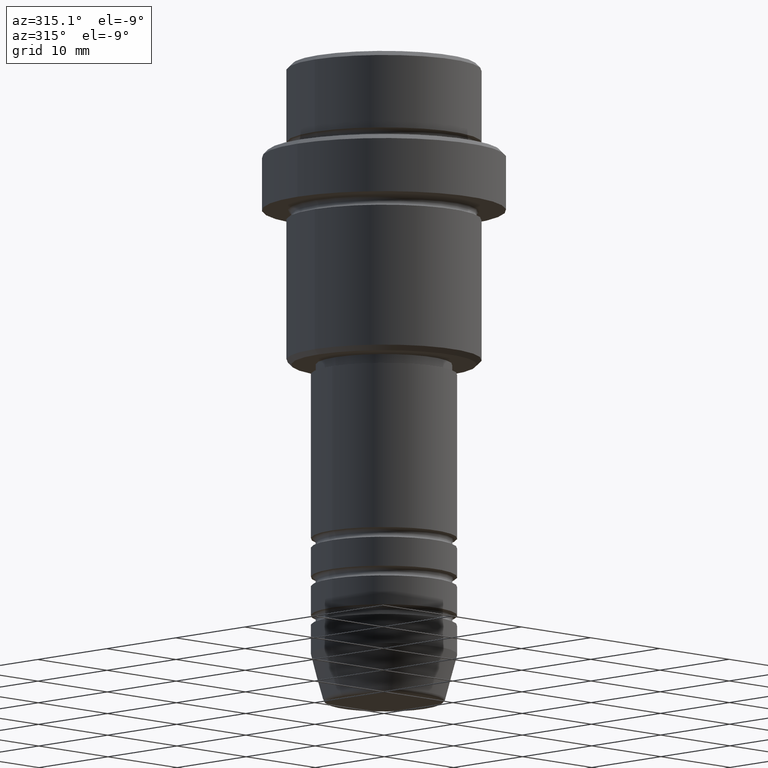
[diagram: clean part render]
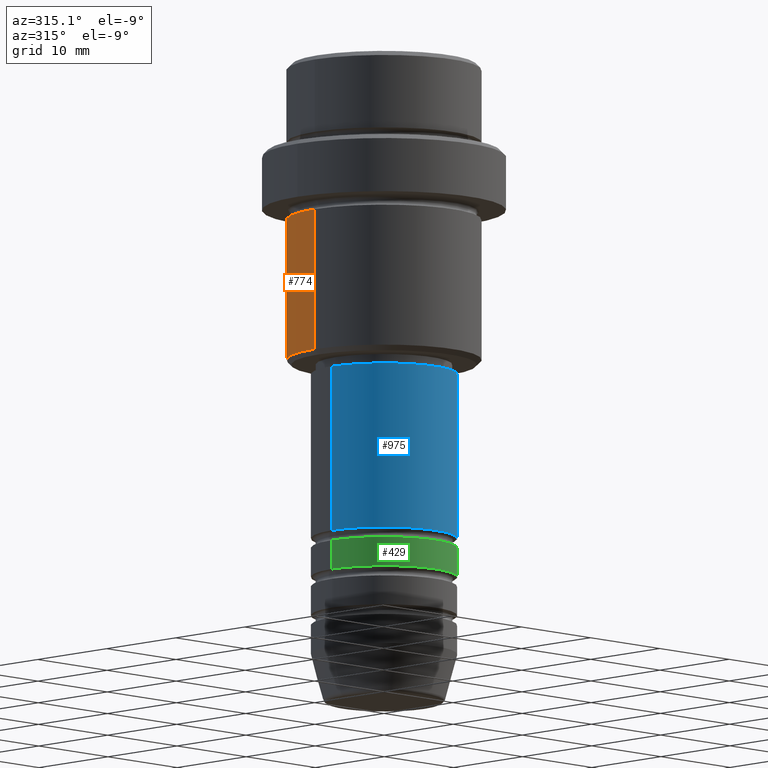
[diagram: same view with three faces highlighted in distinct colors, each labeled with its STEP entity id]
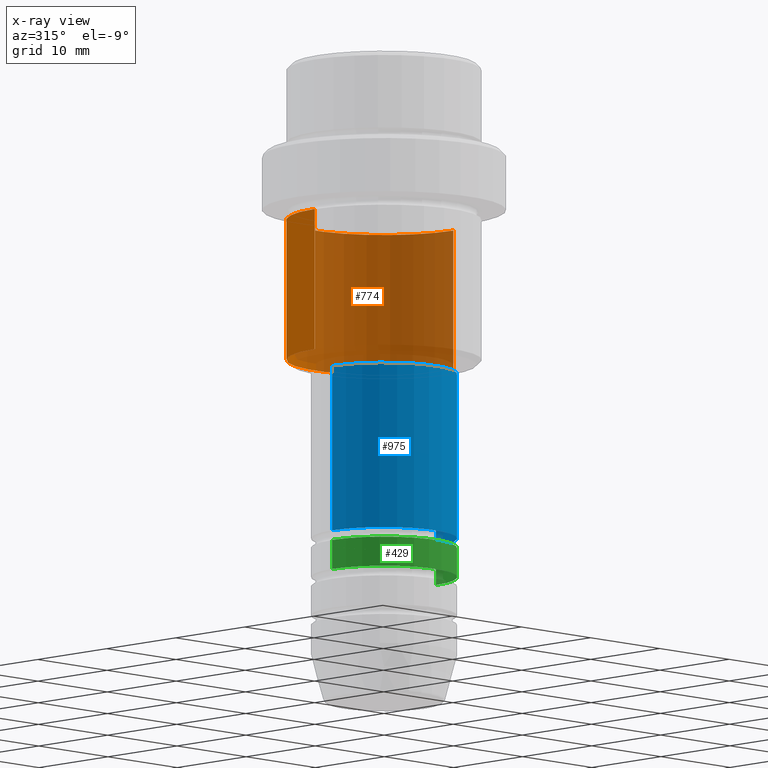
[diagram: x-ray of the same camera — body ghosted, the three highlighted faces saturated]
A machine part, auxiliary view with three faces highlighted in distinct colors.
The next image is the same camera in x-ray (body ghosted, the three faces saturated) — at least one of them is partly hidden behind the body in this view.
Their STEP definitions:

[orange] entity #774 — the highlighted cylindrical surface (partial cylindrical patch) has radius 10 mm, axis along (-0, -0, 1).
#61 = FACE_OUTER_BOUND ( 'NONE', #215, .T. ) ;
#112 = VECTOR ( 'NONE', #1252, 1000.000000000000000 ) ;
#187 = DIRECTION ( 'NONE',  ( 1.000000000000000000, 0.000000000000000000, 0.000000000000000000 ) ) ;
#215 = EDGE_LOOP ( 'NONE', ( #725, #237, #1028, #566 ) ) ;
#237 = ORIENTED_EDGE ( 'NONE', *, *, #630, .T. ) ;
#262 = DIRECTION ( 'NONE',  ( -0.000000000000000000, -0.000000000000000000, 1.000000000000000000 ) ) ;
#275 = EDGE_CURVE ( 'NONE', #1038, #997, #1394, .T. ) ;
#304 = DIRECTION ( 'NONE',  ( -1.000000000000000000, 0.000000000000000000, 0.000000000000000000 ) ) ;
#315 = CARTESIAN_POINT ( 'NONE',  ( 10.00000000000000000, 0.000000000000000000, 0.000000000000000000 ) ) ;
#471 = CARTESIAN_POINT ( 'NONE',  ( 10.00000000000000000, 0.000000000000000000, -30.49999999999998579 ) ) ;
#485 = CARTESIAN_POINT ( 'NONE',  ( 0.000000000000000000, 0.000000000000000000, 0.000000000000000000 ) ) ;
#486 = VERTEX_POINT ( 'NONE', #970 ) ;
#490 = DIRECTION ( 'NONE',  ( -0.000000000000000000, -0.000000000000000000, 1.000000000000000000 ) ) ;
#566 = ORIENTED_EDGE ( 'NONE', *, *, #275, .F. ) ;
#583 = CARTESIAN_POINT ( 'NONE',  ( -10.00000000000000000, 1.224646799147353256E-15, 0.000000000000000000 ) ) ;
#594 = AXIS2_PLACEMENT_3D ( 'NONE', #839, #262, #304 ) ;
#624 = CARTESIAN_POINT ( 'NONE',  ( 10.00000000000000000, 0.000000000000000000, -16.00000000000000000 ) ) ;
#630 = EDGE_CURVE ( 'NONE', #782, #486, #1026, .T. ) ;
#684 = DIRECTION ( 'NONE',  ( -0.000000000000000000, -0.000000000000000000, 1.000000000000000000 ) ) ;
#725 = ORIENTED_EDGE ( 'NONE', *, *, #1295, .T. ) ;
#741 = DIRECTION ( 'NONE',  ( -0.000000000000000000, -0.000000000000000000, 1.000000000000000000 ) ) ;
#774 = ADVANCED_FACE ( 'NONE', ( #61 ), #1383, .T. ) ;
#782 = VERTEX_POINT ( 'NONE', #824 ) ;
#814 = AXIS2_PLACEMENT_3D ( 'NONE', #1150, #490, #1165 ) ;
#824 = CARTESIAN_POINT ( 'NONE',  ( -10.00000000000000000, 1.224646799147353256E-15, -30.49999999999998579 ) ) ;
#831 = CIRCLE ( 'NONE', #594, 10.00000000000000000 ) ;
#839 = CARTESIAN_POINT ( 'NONE',  ( 0.000000000000000000, 0.000000000000000000, -30.49999999999998579 ) ) ;
#970 = CARTESIAN_POINT ( 'NONE',  ( -10.00000000000000000, 1.224646799147353256E-15, -16.00000000000000000 ) ) ;
#997 = VERTEX_POINT ( 'NONE', #624 ) ;
#1026 = LINE ( 'NONE', #583, #112 ) ;
#1028 = ORIENTED_EDGE ( 'NONE', *, *, #1167, .F. ) ;
#1038 = VERTEX_POINT ( 'NONE', #471 ) ;
#1150 = CARTESIAN_POINT ( 'NONE',  ( 0.000000000000000000, 0.000000000000000000, -16.00000000000000000 ) ) ;
#1158 = CIRCLE ( 'NONE', #814, 10.00000000000000000 ) ;
#1165 = DIRECTION ( 'NONE',  ( 1.000000000000000000, 0.000000000000000000, 0.000000000000000000 ) ) ;
#1167 = EDGE_CURVE ( 'NONE', #997, #486, #1158, .T. ) ;
#1218 = VECTOR ( 'NONE', #684, 1000.000000000000000 ) ;
#1252 = DIRECTION ( 'NONE',  ( -0.000000000000000000, -0.000000000000000000, 1.000000000000000000 ) ) ;
#1295 = EDGE_CURVE ( 'NONE', #1038, #782, #831, .T. ) ;
#1304 = AXIS2_PLACEMENT_3D ( 'NONE', #485, #741, #187 ) ;
#1383 = CYLINDRICAL_SURFACE ( 'NONE', #1304, 10.00000000000000000 ) ;
#1394 = LINE ( 'NONE', #315, #1218 ) ;

[blue] entity #975 — the highlighted cylindrical surface (partial cylindrical patch) has radius 7.5 mm, axis along (-0, -0, 1).
#15 = EDGE_LOOP ( 'NONE', ( #678, #1384, #985, #767 ) ) ;
#52 = AXIS2_PLACEMENT_3D ( 'NONE', #1060, #1371, #377 ) ;
#65 = DIRECTION ( 'NONE',  ( -0.000000000000000000, -0.000000000000000000, 1.000000000000000000 ) ) ;
#86 = DIRECTION ( 'NONE',  ( -0.000000000000000000, -0.000000000000000000, 1.000000000000000000 ) ) ;
#126 = CARTESIAN_POINT ( 'NONE',  ( -7.500000000000000000, 9.184850993605147944E-16, -32.00000000000000000 ) ) ;
#191 = VERTEX_POINT ( 'NONE', #676 ) ;
#194 = DIRECTION ( 'NONE',  ( 1.000000000000000000, 0.000000000000000000, 0.000000000000000000 ) ) ;
#200 = CARTESIAN_POINT ( 'NONE',  ( 0.000000000000000000, 0.000000000000000000, 0.000000000000000000 ) ) ;
#273 = AXIS2_PLACEMENT_3D ( 'NONE', #879, #864, #1296 ) ;
#377 = DIRECTION ( 'NONE',  ( 1.000000000000000000, 0.000000000000000000, 0.000000000000000000 ) ) ;
#394 = LINE ( 'NONE', #840, #1138 ) ;
#456 = VERTEX_POINT ( 'NONE', #126 ) ;
#474 = VECTOR ( 'NONE', #1171, 1000.000000000000000 ) ;
#561 = VERTEX_POINT ( 'NONE', #991 ) ;
#577 = CARTESIAN_POINT ( 'NONE',  ( 7.500000000000000000, 0.000000000000000000, -32.00000000000000000 ) ) ;
#655 = FACE_OUTER_BOUND ( 'NONE', #15, .T. ) ;
#676 = CARTESIAN_POINT ( 'NONE',  ( 7.500000000000000000, 0.000000000000000000, -48.99999999999989342 ) ) ;
#678 = ORIENTED_EDGE ( 'NONE', *, *, #766, .F. ) ;
#737 = CIRCLE ( 'NONE', #52, 7.500000000000000000 ) ;
#766 = EDGE_CURVE ( 'NONE', #561, #456, #394, .T. ) ;
#767 = ORIENTED_EDGE ( 'NONE', *, *, #1259, .F. ) ;
#835 = EDGE_CURVE ( 'NONE', #191, #1120, #1179, .T. ) ;
#840 = CARTESIAN_POINT ( 'NONE',  ( -7.500000000000000000, 9.184850993605147944E-16, 0.000000000000000000 ) ) ;
#864 = DIRECTION ( 'NONE',  ( -0.000000000000000000, -0.000000000000000000, 1.000000000000000000 ) ) ;
#879 = CARTESIAN_POINT ( 'NONE',  ( 0.000000000000000000, 0.000000000000000000, -48.99999999999989342 ) ) ;
#975 = ADVANCED_FACE ( 'NONE', ( #655 ), #1188, .T. ) ;
#985 = ORIENTED_EDGE ( 'NONE', *, *, #835, .T. ) ;
#991 = CARTESIAN_POINT ( 'NONE',  ( -7.500000000000000000, 9.184850993605147944E-16, -48.99999999999989342 ) ) ;
#1060 = CARTESIAN_POINT ( 'NONE',  ( 0.000000000000000000, 0.000000000000000000, -32.00000000000000000 ) ) ;
#1062 = AXIS2_PLACEMENT_3D ( 'NONE', #200, #86, #194 ) ;
#1069 = CARTESIAN_POINT ( 'NONE',  ( 7.500000000000000000, 0.000000000000000000, 0.000000000000000000 ) ) ;
#1120 = VERTEX_POINT ( 'NONE', #577 ) ;
#1138 = VECTOR ( 'NONE', #65, 1000.000000000000000 ) ;
#1171 = DIRECTION ( 'NONE',  ( -0.000000000000000000, -0.000000000000000000, 1.000000000000000000 ) ) ;
#1179 = LINE ( 'NONE', #1069, #474 ) ;
#1188 = CYLINDRICAL_SURFACE ( 'NONE', #1062, 7.500000000000000000 ) ;
#1202 = CIRCLE ( 'NONE', #273, 7.500000000000000000 ) ;
#1259 = EDGE_CURVE ( 'NONE', #456, #1120, #737, .T. ) ;
#1296 = DIRECTION ( 'NONE',  ( 1.000000000000000000, 0.000000000000000000, 0.000000000000000000 ) ) ;
#1371 = DIRECTION ( 'NONE',  ( -0.000000000000000000, -0.000000000000000000, 1.000000000000000000 ) ) ;
#1384 = ORIENTED_EDGE ( 'NONE', *, *, #1408, .T. ) ;
#1408 = EDGE_CURVE ( 'NONE', #561, #191, #1202, .T. ) ;

[green] entity #429 — the highlighted cylindrical surface (partial cylindrical patch) has radius 7.5 mm, axis along (-0, -0, 1).
#73 = LINE ( 'NONE', #639, #936 ) ;
#95 = VECTOR ( 'NONE', #103, 1000.000000000000000 ) ;
#103 = DIRECTION ( 'NONE',  ( -0.000000000000000000, -0.000000000000000000, 1.000000000000000000 ) ) ;
#118 = DIRECTION ( 'NONE',  ( -0.000000000000000000, -0.000000000000000000, 1.000000000000000000 ) ) ;
#125 = ORIENTED_EDGE ( 'NONE', *, *, #1359, .T. ) ;
#170 = CARTESIAN_POINT ( 'NONE',  ( -7.500000000000000000, 9.184850993605147944E-16, -52.99999999999989342 ) ) ;
#174 = EDGE_CURVE ( 'NONE', #332, #188, #73, .T. ) ;
#188 = VERTEX_POINT ( 'NONE', #909 ) ;
#226 = ORIENTED_EDGE ( 'NONE', *, *, #999, .T. ) ;
#227 = CIRCLE ( 'NONE', #708, 7.500000000000000000 ) ;
#310 = DIRECTION ( 'NONE',  ( -0.000000000000000000, -0.000000000000000000, 1.000000000000000000 ) ) ;
#320 = CARTESIAN_POINT ( 'NONE',  ( 7.500000000000000000, 0.000000000000000000, -49.99999999999989342 ) ) ;
#332 = VERTEX_POINT ( 'NONE', #170 ) ;
#365 = CIRCLE ( 'NONE', #570, 7.500000000000000000 ) ;
#400 = AXIS2_PLACEMENT_3D ( 'NONE', #1288, #742, #1369 ) ;
#402 = FACE_OUTER_BOUND ( 'NONE', #619, .T. ) ;
#415 = CARTESIAN_POINT ( 'NONE',  ( 0.000000000000000000, 0.000000000000000000, -52.99999999999989342 ) ) ;
#419 = LINE ( 'NONE', #626, #95 ) ;
#429 = ADVANCED_FACE ( 'NONE', ( #402 ), #854, .T. ) ;
#477 = VERTEX_POINT ( 'NONE', #320 ) ;
#497 = EDGE_CURVE ( 'NONE', #188, #477, #227, .T. ) ;
#499 = CARTESIAN_POINT ( 'NONE',  ( 7.500000000000000000, 0.000000000000000000, -52.99999999999989342 ) ) ;
#570 = AXIS2_PLACEMENT_3D ( 'NONE', #415, #310, #753 ) ;
#619 = EDGE_LOOP ( 'NONE', ( #1153, #226, #125, #929 ) ) ;
#626 = CARTESIAN_POINT ( 'NONE',  ( 7.500000000000000000, 0.000000000000000000, 0.000000000000000000 ) ) ;
#633 = DIRECTION ( 'NONE',  ( 1.000000000000000000, 0.000000000000000000, 0.000000000000000000 ) ) ;
#639 = CARTESIAN_POINT ( 'NONE',  ( -7.500000000000000000, 9.184850993605147944E-16, 0.000000000000000000 ) ) ;
#708 = AXIS2_PLACEMENT_3D ( 'NONE', #890, #118, #633 ) ;
#742 = DIRECTION ( 'NONE',  ( -0.000000000000000000, -0.000000000000000000, 1.000000000000000000 ) ) ;
#753 = DIRECTION ( 'NONE',  ( 1.000000000000000000, 0.000000000000000000, 0.000000000000000000 ) ) ;
#854 = CYLINDRICAL_SURFACE ( 'NONE', #400, 7.500000000000000000 ) ;
#865 = VERTEX_POINT ( 'NONE', #499 ) ;
#890 = CARTESIAN_POINT ( 'NONE',  ( 0.000000000000000000, 0.000000000000000000, -49.99999999999989342 ) ) ;
#909 = CARTESIAN_POINT ( 'NONE',  ( -7.500000000000000000, 9.184850993605147944E-16, -49.99999999999989342 ) ) ;
#929 = ORIENTED_EDGE ( 'NONE', *, *, #497, .F. ) ;
#936 = VECTOR ( 'NONE', #1203, 1000.000000000000000 ) ;
#999 = EDGE_CURVE ( 'NONE', #332, #865, #365, .T. ) ;
#1153 = ORIENTED_EDGE ( 'NONE', *, *, #174, .F. ) ;
#1203 = DIRECTION ( 'NONE',  ( -0.000000000000000000, -0.000000000000000000, 1.000000000000000000 ) ) ;
#1288 = CARTESIAN_POINT ( 'NONE',  ( 0.000000000000000000, 0.000000000000000000, 0.000000000000000000 ) ) ;
#1359 = EDGE_CURVE ( 'NONE', #865, #477, #419, .T. ) ;
#1369 = DIRECTION ( 'NONE',  ( 1.000000000000000000, 0.000000000000000000, 0.000000000000000000 ) ) ;